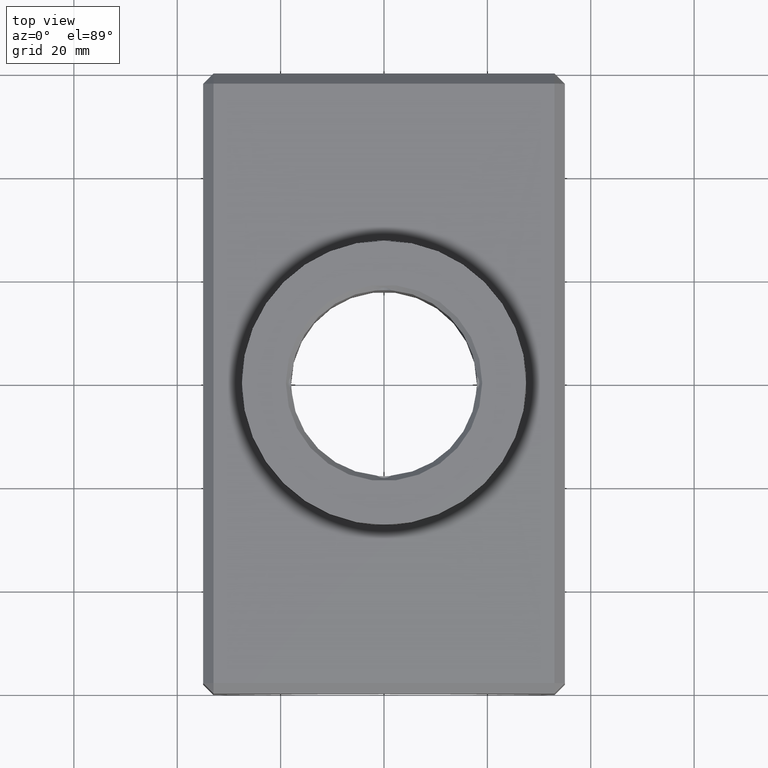
[diagram: clean part render]
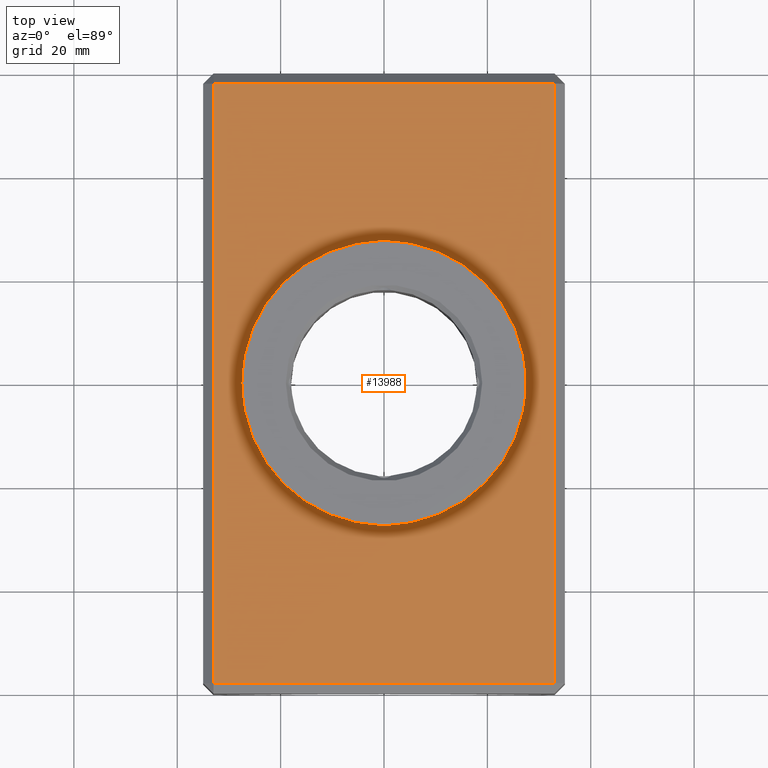
[diagram: same view with one face highlighted and labeled with its STEP entity id]
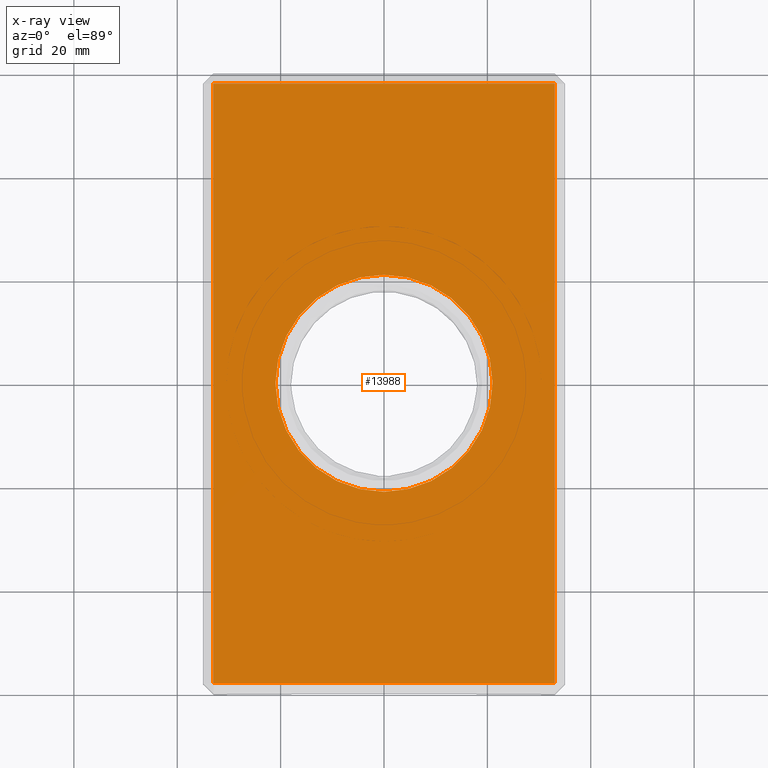
[diagram: x-ray of the same camera — body ghosted, the highlighted face saturated]
A machine part, top view. The second image highlights one B-rep face of the part: STEP entity #13988.
The next image is the same camera in x-ray: the body ghosted, the highlighted face saturated — about 0% of this face is hidden behind the body in this view.
In plain terms, the highlighted planar face has unit normal (-0, -0, 1).
Its self-contained STEP definition (entity closure, byte-faithful):
#508 = VERTEX_POINT ( 'NONE', #15625 ) ;
#614 = EDGE_LOOP ( 'NONE', ( #2778, #9481, #16592, #14208 ) ) ;
#749 = CARTESIAN_POINT ( 'NONE',  ( 34.99999999999999289, -58.00000000000000000, 7.499999999999986677 ) ) ;
#1042 = DIRECTION ( 'NONE',  ( 0.000000000000000000, -1.000000000000000000, -1.879283765641541183E-16 ) ) ;
#1118 = VERTEX_POINT ( 'NONE', #11706 ) ;
#2167 = CARTESIAN_POINT ( 'NONE',  ( 32.99999999999997158, -58.00000000000000000, 7.499999999999986677 ) ) ;
#2592 = EDGE_CURVE ( 'NONE', #9087, #508, #4287, .T. ) ;
#2778 = ORIENTED_EDGE ( 'NONE', *, *, #3427, .T. ) ;
#3138 = CARTESIAN_POINT ( 'NONE',  ( -32.99999999999998579, 57.99999999999998579, 7.500000000000008882 ) ) ;
#3302 = CARTESIAN_POINT ( 'NONE',  ( 32.99999999999998579, 59.99999999999999289, 7.500000000000008882 ) ) ;
#3394 = ORIENTED_EDGE ( 'NONE', *, *, #15820, .T. ) ;
#3419 = AXIS2_PLACEMENT_3D ( 'NONE', #6830, #16738, #1042 ) ;
#3427 = EDGE_CURVE ( 'NONE', #17025, #18197, #4067, .T. ) ;
#3531 = DIRECTION ( 'NONE',  ( 1.000000000000000000, -3.965082230804130713E-16, -1.094764425253763337E-47 ) ) ;
#4067 = LINE ( 'NONE', #12712, #10996 ) ;
#4287 = CIRCLE ( 'NONE', #10063, 21.00000000000000711 ) ;
#5514 = LINE ( 'NONE', #749, #7074 ) ;
#6744 = ORIENTED_EDGE ( 'NONE', *, *, #2592, .T. ) ;
#6830 = CARTESIAN_POINT ( 'NONE',  ( -5.588635999337959304E-31, -1.409462824231155567E-15, 7.499999999999998224 ) ) ;
#7074 = VECTOR ( 'NONE', #3531, 1000.000000000000000 ) ;
#7181 = DIRECTION ( 'NONE',  ( -1.000000000000000000, 1.982541115402065356E-16, -3.725757332891973782E-32 ) ) ;
#7690 = DIRECTION ( 'NONE',  ( 0.000000000000000000, 1.836970198721029441E-16, -1.000000000000000000 ) ) ;
#8372 = DIRECTION ( 'NONE',  ( -5.782411586589357392E-17, -1.000000000000000000, -1.879283765641541183E-16 ) ) ;
#8829 = CARTESIAN_POINT ( 'NONE',  ( -32.99999999999999289, -57.99999999999997868, 7.499999999999986677 ) ) ;
#9087 = VERTEX_POINT ( 'NONE', #11383 ) ;
#9385 = LINE ( 'NONE', #15758, #13668 ) ;
#9481 = ORIENTED_EDGE ( 'NONE', *, *, #15768, .T. ) ;
#10012 = AXIS2_PLACEMENT_3D ( 'NONE', #10661, #11033, #14003 ) ;
#10058 = EDGE_CURVE ( 'NONE', #12468, #1118, #13214, .T. ) ;
#10063 = AXIS2_PLACEMENT_3D ( 'NONE', #16285, #7690, #13591 ) ;
#10661 = CARTESIAN_POINT ( 'NONE',  ( 0.000000000000000000, -3.857637417314161111E-15, 7.499999999999998224 ) ) ;
#10996 = VECTOR ( 'NONE', #8372, 1000.000000000000000 ) ;
#11033 = DIRECTION ( 'NONE',  ( 0.000000000000000000, 1.836970198721029441E-16, -1.000000000000000000 ) ) ;
#11097 = CIRCLE ( 'NONE', #10012, 21.00000000000000711 ) ;
#11158 = EDGE_CURVE ( 'NONE', #1118, #17025, #9385, .T. ) ;
#11383 = CARTESIAN_POINT ( 'NONE',  ( 2.571758278209442450E-15, 21.00000000000000355, 7.500000000000001776 ) ) ;
#11695 = DIRECTION ( 'NONE',  ( 1.156482317317871478E-16, 1.000000000000000000, 1.879283765641541183E-16 ) ) ;
#11706 = CARTESIAN_POINT ( 'NONE',  ( 32.99999999999998579, 57.99999999999997868, 7.500000000000008882 ) ) ;
#12044 = EDGE_LOOP ( 'NONE', ( #3394, #6744 ) ) ;
#12468 = VERTEX_POINT ( 'NONE', #2167 ) ;
#12712 = CARTESIAN_POINT ( 'NONE',  ( -32.99999999999999289, -59.99999999999999289, 7.499999999999986677 ) ) ;
#12988 = VECTOR ( 'NONE', #11695, 1000.000000000000000 ) ;
#13214 = LINE ( 'NONE', #3302, #12988 ) ;
#13591 = DIRECTION ( 'NONE',  ( 0.000000000000000000, 1.000000000000000000, 1.652117596168387263E-16 ) ) ;
#13668 = VECTOR ( 'NONE', #7181, 1000.000000000000000 ) ;
#13869 = PLANE ( 'NONE',  #3419 ) ;
#13988 = ADVANCED_FACE ( 'NONE', ( #14065, #16754 ), #13869, .T. ) ;
#14003 = DIRECTION ( 'NONE',  ( 0.000000000000000000, 1.000000000000000000, 1.652117596168387263E-16 ) ) ;
#14065 = FACE_OUTER_BOUND ( 'NONE', #614, .T. ) ;
#14208 = ORIENTED_EDGE ( 'NONE', *, *, #11158, .T. ) ;
#15625 = CARTESIAN_POINT ( 'NONE',  ( 0.000000000000000000, -21.00000000000001066, 7.499999999999994671 ) ) ;
#15758 = CARTESIAN_POINT ( 'NONE',  ( -35.00000000000000000, 57.99999999999998579, 7.500000000000008882 ) ) ;
#15768 = EDGE_CURVE ( 'NONE', #18197, #12468, #5514, .T. ) ;
#15820 = EDGE_CURVE ( 'NONE', #508, #9087, #11097, .T. ) ;
#16285 = CARTESIAN_POINT ( 'NONE',  ( 0.000000000000000000, -3.857637417314161111E-15, 7.499999999999998224 ) ) ;
#16592 = ORIENTED_EDGE ( 'NONE', *, *, #10058, .T. ) ;
#16738 = DIRECTION ( 'NONE',  ( -7.451514665783948658E-32, -1.879283765641541183E-16, 1.000000000000000000 ) ) ;
#16754 = FACE_BOUND ( 'NONE', #12044, .T. ) ;
#17025 = VERTEX_POINT ( 'NONE', #3138 ) ;
#18197 = VERTEX_POINT ( 'NONE', #8829 ) ;